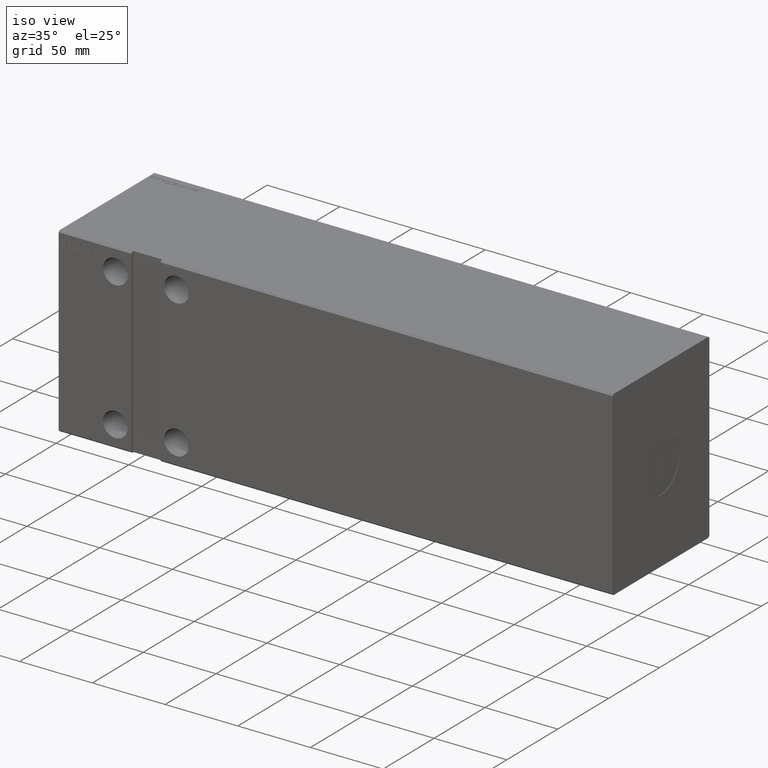
[diagram: clean part render]
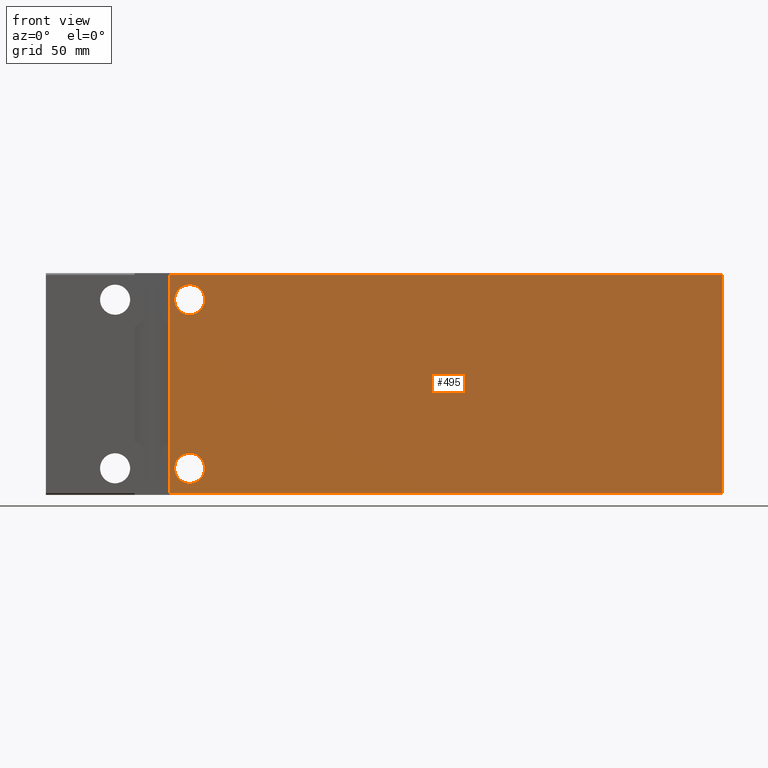
[diagram: tour spotlight — one face highlighted and labeled with its STEP entity id]
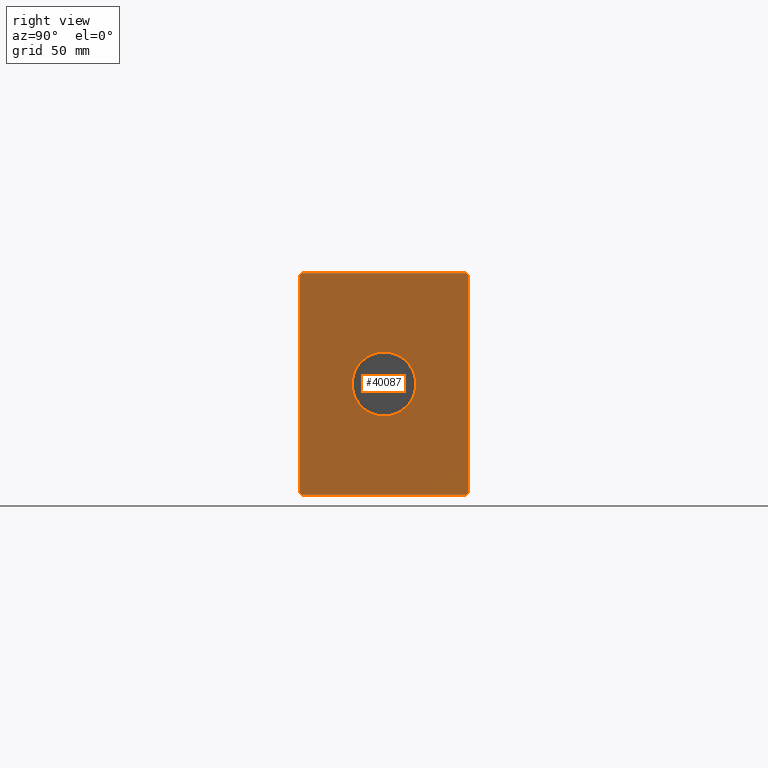
[diagram: tour spotlight — one face highlighted and labeled with its STEP entity id]
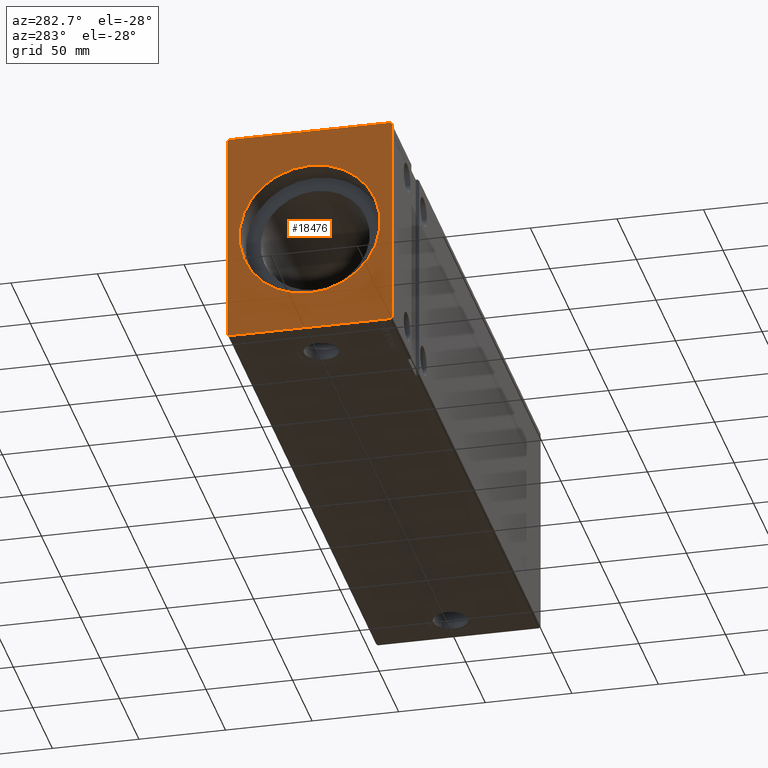
[diagram: tour spotlight — one face highlighted and labeled with its STEP entity id]
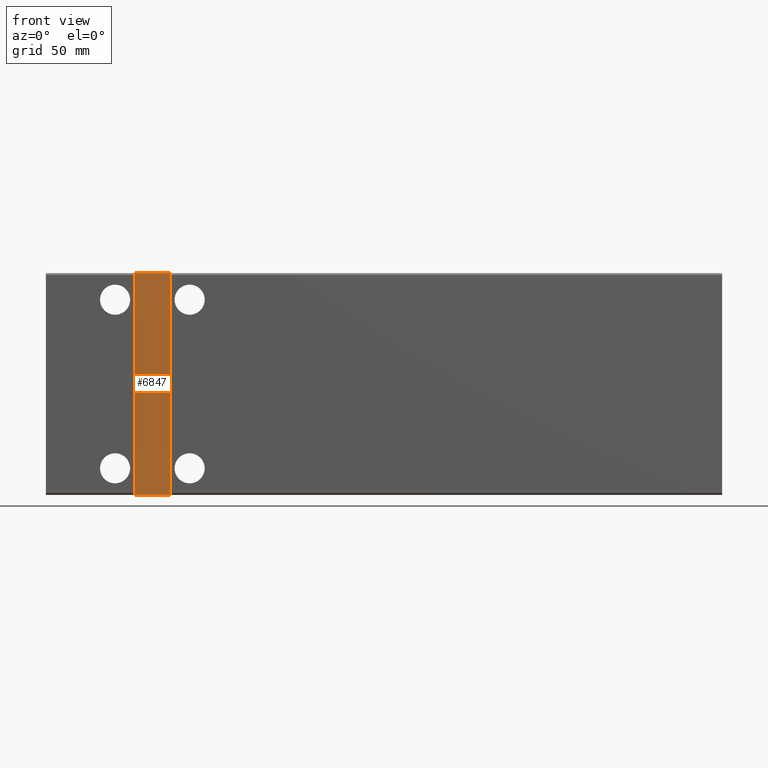
[diagram: tour spotlight — one face highlighted and labeled with its STEP entity id]
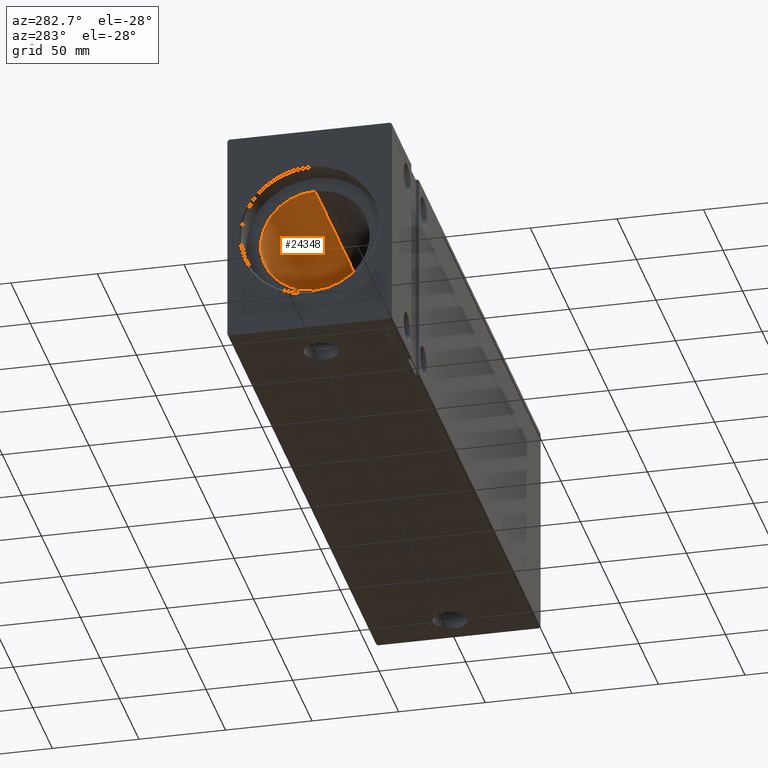
[diagram: tour spotlight — one face highlighted and labeled with its STEP entity id]
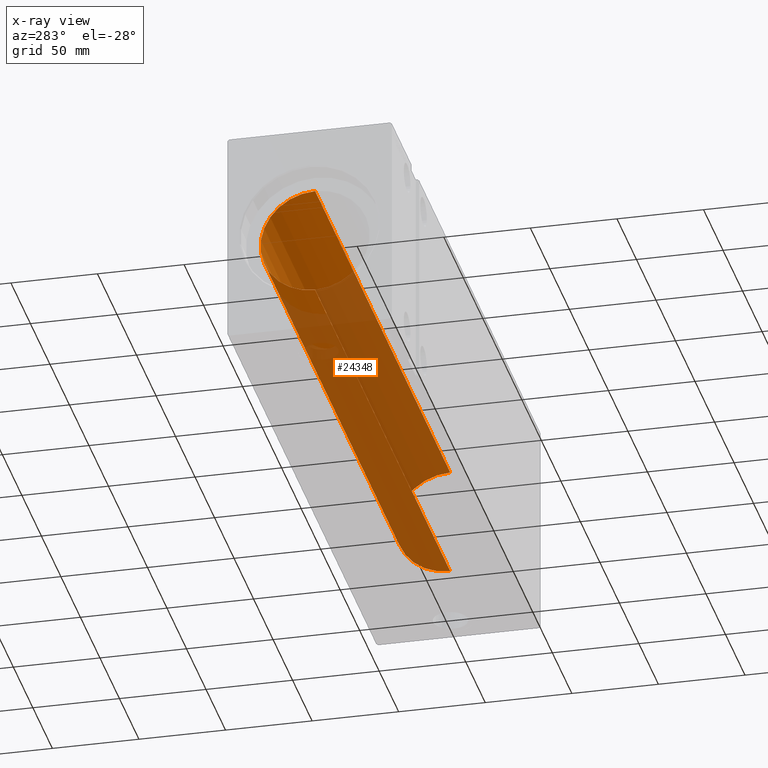
[diagram: x-ray of the same camera — body ghosted, this tour face saturated]
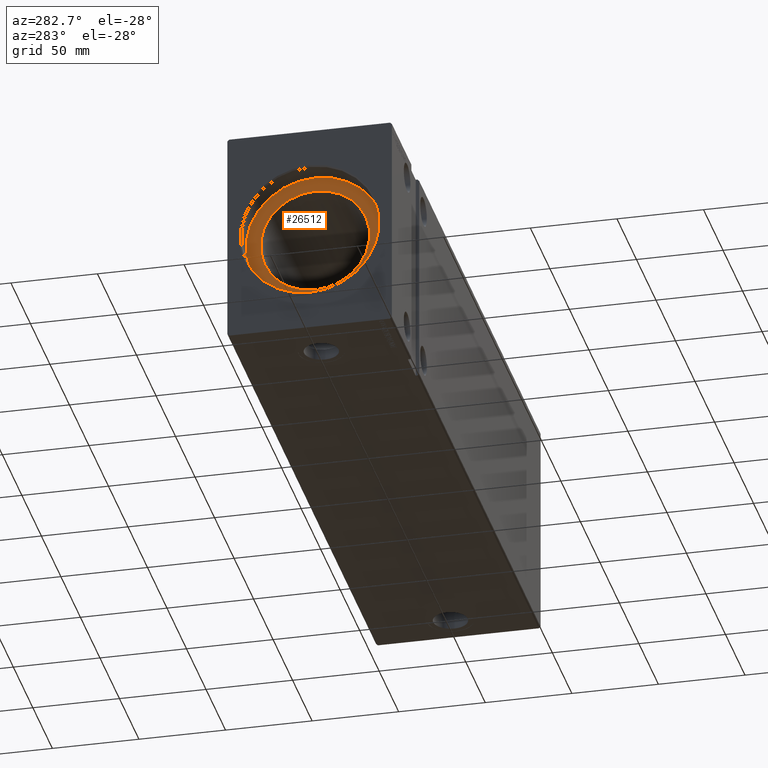
[diagram: tour spotlight — one face highlighted and labeled with its STEP entity id]
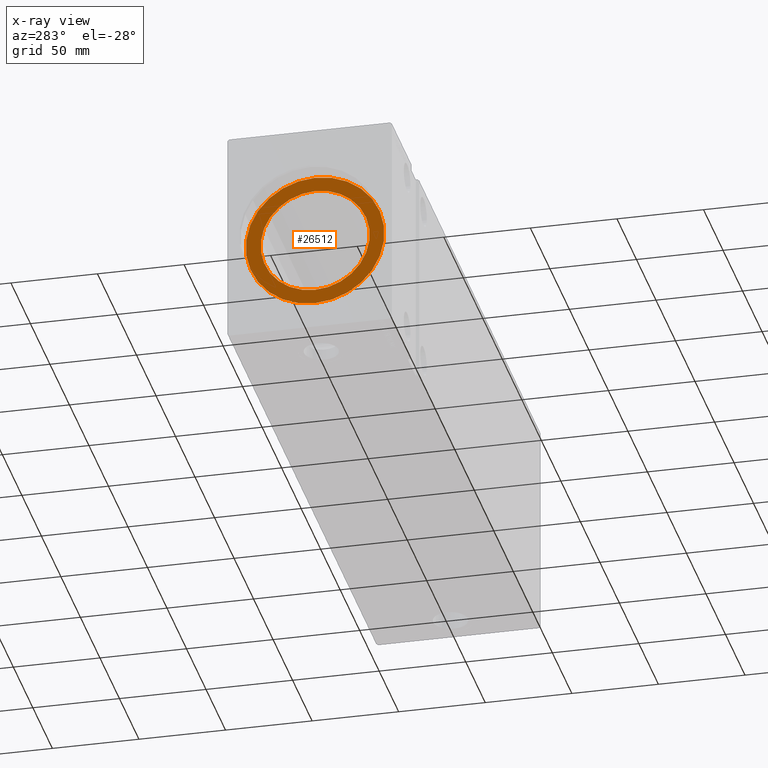
[diagram: x-ray of the same camera — body ghosted, this tour face saturated]
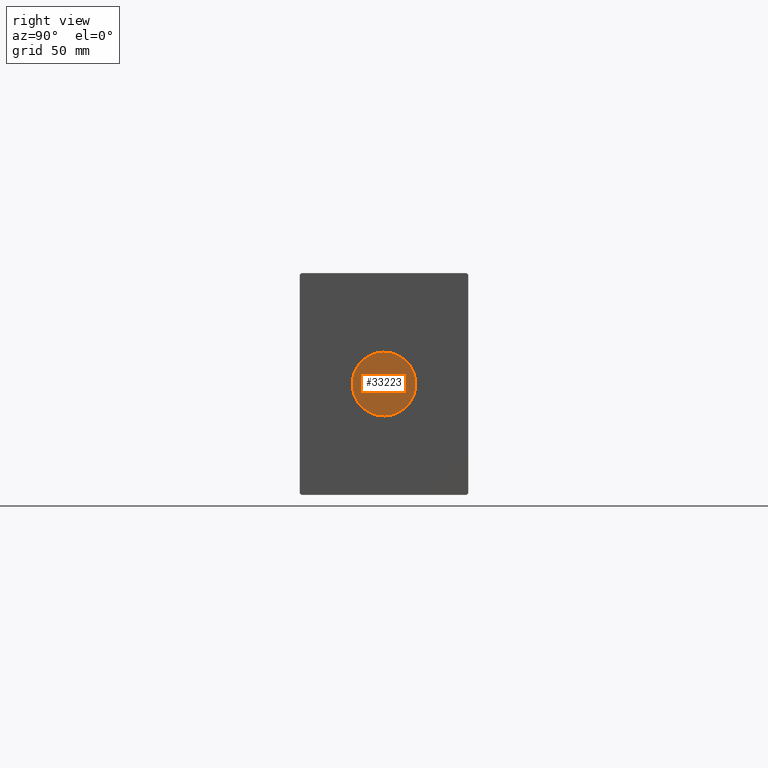
[diagram: tour spotlight — one face highlighted and labeled with its STEP entity id]
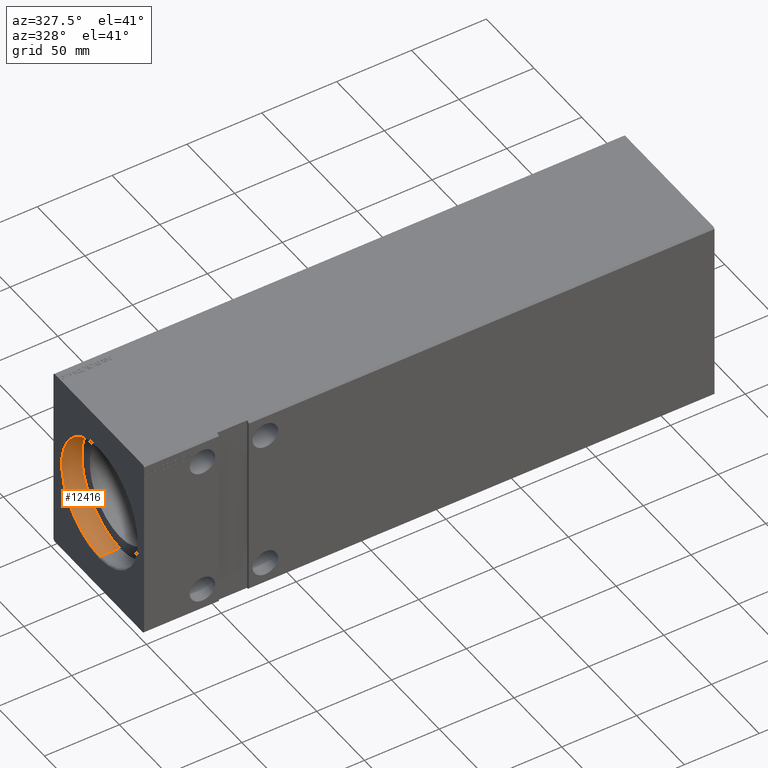
[diagram: tour spotlight — one face highlighted and labeled with its STEP entity id]
A machine part: a face-by-face anatomy tour. The part has 805 B-rep faces; the first image is the clean iso view, then the 8 largest visible faces are spotlighted one at a time (largest first), each with its STEP entity span.

Face 1 — front view, entity #495. In plain terms, the highlighted planar face has unit normal (-0, 1, 0).
Definition (entity closure, byte-faithful):
#404 = CARTESIAN_POINT ( 'NONE',  ( 381.0000000000000000, -47.50000000000001421, 61.49999999999997868 ) ) ;
#495 = ADVANCED_FACE ( 'NONE', ( #10434, #36680, #27073 ), #4462, .F. ) ;
#3072 = CARTESIAN_POINT ( 'NONE',  ( 381.0000000000000000, -47.49999999999999289, -61.50000000000001421 ) ) ;
#3134 = LINE ( 'NONE', #29373, #37512 ) ;
#3879 = CARTESIAN_POINT ( 'NONE',  ( 70.00000000000000000, -47.50000000000000711, 61.49999999999998579 ) ) ;
#4462 = PLANE ( 'NONE',  #24668 ) ;
#4849 = ORIENTED_EDGE ( 'NONE', *, *, #30646, .T. ) ;
#6388 = CARTESIAN_POINT ( 'NONE',  ( 81.00000000000000000, -47.50000000000000711, 55.99999999999999289 ) ) ;
#7873 = DIRECTION ( 'NONE',  ( -0.000000000000000000, 1.000000000000000000, 1.692413147294445970E-16 ) ) ;
#8151 = CARTESIAN_POINT ( 'NONE',  ( 81.00000000000001421, -47.49999999999999289, -56.00000000000001421 ) ) ;
#8710 = DIRECTION ( 'NONE',  ( -0.000000000000000000, 1.000000000000000000, 1.692413147294445970E-16 ) ) ;
#9524 = VECTOR ( 'NONE', #36567, 1000.000000000000000 ) ;
#10434 = FACE_BOUND ( 'NONE', #42038, .T. ) ;
#10473 = EDGE_LOOP ( 'NONE', ( #34260, #16860, #23644, #29429 ) ) ;
#11064 = DIRECTION ( 'NONE',  ( 0.000000000000000000, -1.692413147294445970E-16, 1.000000000000000000 ) ) ;
#11759 = CIRCLE ( 'NONE', #17923, 8.500000000000000000 ) ;
#12220 = VECTOR ( 'NONE', #13039, 1000.000000000000000 ) ;
#12515 = EDGE_LOOP ( 'NONE', ( #22028, #14663 ) ) ;
#13039 = DIRECTION ( 'NONE',  ( 0.000000000000000000, 1.692413147294445970E-16, -1.000000000000000000 ) ) ;
#13191 = ORIENTED_EDGE ( 'NONE', *, *, #28121, .T. ) ;
#13468 = LINE ( 'NONE', #39484, #12220 ) ;
#13518 = LINE ( 'NONE', #26527, #9524 ) ;
#14663 = ORIENTED_EDGE ( 'NONE', *, *, #34803, .F. ) ;
#15089 = VERTEX_POINT ( 'NONE', #3879 ) ;
#15092 = AXIS2_PLACEMENT_3D ( 'NONE', #22566, #8710, #15127 ) ;
#15127 = DIRECTION ( 'NONE',  ( 0.000000000000000000, 0.000000000000000000, 1.000000000000000000 ) ) ;
#16560 = DIRECTION ( 'NONE',  ( -1.110223024625156540E-16, -0.000000000000000000, 1.000000000000000000 ) ) ;
#16860 = ORIENTED_EDGE ( 'NONE', *, *, #22084, .F. ) ;
#17147 = CARTESIAN_POINT ( 'NONE',  ( 81.00000000000000000, -47.50000000000000711, 38.99999999999999289 ) ) ;
#17694 = CARTESIAN_POINT ( 'NONE',  ( 81.00000000000001421, -47.49999999999999289, -39.00000000000000000 ) ) ;
#17885 = VERTEX_POINT ( 'NONE', #17147 ) ;
#17923 = AXIS2_PLACEMENT_3D ( 'NONE', #35828, #26421, #19821 ) ;
#18189 = EDGE_CURVE ( 'NONE', #34721, #38424, #13468, .T. ) ;
#19104 = AXIS2_PLACEMENT_3D ( 'NONE', #40618, #37416, #33812 ) ;
#19821 = DIRECTION ( 'NONE',  ( 0.000000000000000000, 0.000000000000000000, 1.000000000000000000 ) ) ;
#19954 = VERTEX_POINT ( 'NONE', #25986 ) ;
#21642 = EDGE_CURVE ( 'NONE', #38424, #19954, #13518, .T. ) ;
#22028 = ORIENTED_EDGE ( 'NONE', *, *, #40724, .F. ) ;
#22084 = EDGE_CURVE ( 'NONE', #19954, #15089, #3134, .T. ) ;
#22369 = CARTESIAN_POINT ( 'NONE',  ( 381.0000000000000000, -47.50000000000001421, 61.49999999999997868 ) ) ;
#22566 = CARTESIAN_POINT ( 'NONE',  ( 81.00000000000001421, -47.49999999999999289, -47.50000000000000711 ) ) ;
#23644 = ORIENTED_EDGE ( 'NONE', *, *, #21642, .F. ) ;
#23897 = CIRCLE ( 'NONE', #19104, 8.500000000000007105 ) ;
#24240 = VERTEX_POINT ( 'NONE', #17694 ) ;
#24668 = AXIS2_PLACEMENT_3D ( 'NONE', #404, #7873, #11064 ) ;
#25986 = CARTESIAN_POINT ( 'NONE',  ( 70.00000000000001421, -47.50000000000000711, -61.50000000000002132 ) ) ;
#26421 = DIRECTION ( 'NONE',  ( 0.000000000000000000, -1.000000000000000000, -1.692413147294445970E-16 ) ) ;
#26527 = CARTESIAN_POINT ( 'NONE',  ( 381.0000000000000000, -47.49999999999999289, -61.50000000000001421 ) ) ;
#27073 = FACE_BOUND ( 'NONE', #12515, .T. ) ;
#27516 = VERTEX_POINT ( 'NONE', #6388 ) ;
#28121 = EDGE_CURVE ( 'NONE', #31984, #24240, #23897, .T. ) ;
#29373 = CARTESIAN_POINT ( 'NONE',  ( 70.00000000000000000, -47.50000000000000711, 62.49999999999997868 ) ) ;
#29429 = ORIENTED_EDGE ( 'NONE', *, *, #18189, .F. ) ;
#29708 = DIRECTION ( 'NONE',  ( 0.000000000000000000, 0.000000000000000000, 1.000000000000000000 ) ) ;
#29916 = CARTESIAN_POINT ( 'NONE',  ( 81.00000000000000000, -47.50000000000000711, 47.49999999999999289 ) ) ;
#30322 = CIRCLE ( 'NONE', #37105, 8.500000000000000000 ) ;
#30646 = EDGE_CURVE ( 'NONE', #24240, #31984, #33491, .T. ) ;
#31360 = DIRECTION ( 'NONE',  ( -1.000000000000000000, -0.000000000000000000, -0.000000000000000000 ) ) ;
#31984 = VERTEX_POINT ( 'NONE', #8151 ) ;
#33254 = CARTESIAN_POINT ( 'NONE',  ( 381.0000000000000000, -47.50000000000001421, 61.49999999999997868 ) ) ;
#33491 = CIRCLE ( 'NONE', #15092, 8.500000000000007105 ) ;
#33652 = EDGE_CURVE ( 'NONE', #34721, #15089, #38582, .T. ) ;
#33812 = DIRECTION ( 'NONE',  ( 0.000000000000000000, 0.000000000000000000, 1.000000000000000000 ) ) ;
#34260 = ORIENTED_EDGE ( 'NONE', *, *, #33652, .T. ) ;
#34721 = VERTEX_POINT ( 'NONE', #33254 ) ;
#34803 = EDGE_CURVE ( 'NONE', #27516, #17885, #11759, .T. ) ;
#35828 = CARTESIAN_POINT ( 'NONE',  ( 81.00000000000000000, -47.50000000000000711, 47.49999999999999289 ) ) ;
#36567 = DIRECTION ( 'NONE',  ( -1.000000000000000000, -0.000000000000000000, -0.000000000000000000 ) ) ;
#36680 = FACE_OUTER_BOUND ( 'NONE', #10473, .T. ) ;
#36743 = DIRECTION ( 'NONE',  ( 0.000000000000000000, -1.000000000000000000, -1.692413147294445970E-16 ) ) ;
#37105 = AXIS2_PLACEMENT_3D ( 'NONE', #29916, #36743, #29708 ) ;
#37416 = DIRECTION ( 'NONE',  ( -0.000000000000000000, 1.000000000000000000, 1.692413147294445970E-16 ) ) ;
#37512 = VECTOR ( 'NONE', #16560, 1000.000000000000000 ) ;
#37629 = VECTOR ( 'NONE', #31360, 1000.000000000000000 ) ;
#38424 = VERTEX_POINT ( 'NONE', #3072 ) ;
#38582 = LINE ( 'NONE', #22369, #37629 ) ;
#39484 = CARTESIAN_POINT ( 'NONE',  ( 381.0000000000000000, -47.50000000000001421, 61.49999999999997868 ) ) ;
#40618 = CARTESIAN_POINT ( 'NONE',  ( 81.00000000000001421, -47.49999999999999289, -47.50000000000000711 ) ) ;
#40724 = EDGE_CURVE ( 'NONE', #17885, #27516, #30322, .T. ) ;
#42038 = EDGE_LOOP ( 'NONE', ( #13191, #4849 ) ) ;

Face 2 — right view, entity #40087. In plain terms, the highlighted planar face has unit normal (1, 0, 0).
Definition (entity closure, byte-faithful):
#301 = DIRECTION ( 'NONE',  ( 1.000000000000000000, 0.000000000000000000, 0.000000000000000000 ) ) ;
#1329 = DIRECTION ( 'NONE',  ( 0.000000000000000000, -1.128275431529630729E-16, 1.000000000000000000 ) ) ;
#1611 = EDGE_CURVE ( 'NONE', #4263, #32450, #37185, .T. ) ;
#2789 = VERTEX_POINT ( 'NONE', #29898 ) ;
#3072 = CARTESIAN_POINT ( 'NONE',  ( 381.0000000000000000, -47.49999999999999289, -61.50000000000001421 ) ) ;
#3412 = FACE_BOUND ( 'NONE', #9410, .T. ) ;
#3756 = VECTOR ( 'NONE', #30555, 999.9999999999998863 ) ;
#4263 = VERTEX_POINT ( 'NONE', #26371 ) ;
#4635 = CARTESIAN_POINT ( 'NONE',  ( 381.0000000000000000, 46.50000000000000000, 62.49999999999998579 ) ) ;
#6471 = CARTESIAN_POINT ( 'NONE',  ( 381.0000000000000000, 46.50000000000000000, 62.49999999999998579 ) ) ;
#7181 = VERTEX_POINT ( 'NONE', #12640 ) ;
#7527 = CIRCLE ( 'NONE', #31392, 18.00000000000000000 ) ;
#7553 = DIRECTION ( 'NONE',  ( 0.000000000000000000, 0.000000000000000000, -1.000000000000000000 ) ) ;
#7765 = CARTESIAN_POINT ( 'NONE',  ( 381.0000000000000000, 0.000000000000000000, 0.000000000000000000 ) ) ;
#8198 = VECTOR ( 'NONE', #25537, 1000.000000000000114 ) ;
#8508 = ORIENTED_EDGE ( 'NONE', *, *, #25982, .T. ) ;
#9082 = VERTEX_POINT ( 'NONE', #17118 ) ;
#9410 = EDGE_LOOP ( 'NONE', ( #33318, #22929 ) ) ;
#9819 = ORIENTED_EDGE ( 'NONE', *, *, #10873, .T. ) ;
#10013 = DIRECTION ( 'NONE',  ( 1.000000000000000000, 0.000000000000000000, 0.000000000000000000 ) ) ;
#10873 = EDGE_CURVE ( 'NONE', #32450, #31829, #11140, .T. ) ;
#11140 = LINE ( 'NONE', #17344, #11930 ) ;
#11873 = CARTESIAN_POINT ( 'NONE',  ( 381.0000000000000000, 2.204364238465235428E-15, 18.00000000000000000 ) ) ;
#11930 = VECTOR ( 'NONE', #13935, 1000.000000000000114 ) ;
#12220 = VECTOR ( 'NONE', #13039, 1000.000000000000000 ) ;
#12473 = LINE ( 'NONE', #32312, #12940 ) ;
#12640 = CARTESIAN_POINT ( 'NONE',  ( 381.0000000000000000, 0.000000000000000000, -18.00000000000000000 ) ) ;
#12682 = EDGE_CURVE ( 'NONE', #31829, #35733, #20867, .T. ) ;
#12845 = ORIENTED_EDGE ( 'NONE', *, *, #41622, .T. ) ;
#12940 = VECTOR ( 'NONE', #32103, 1000.000000000000000 ) ;
#13039 = DIRECTION ( 'NONE',  ( 0.000000000000000000, 1.692413147294445970E-16, -1.000000000000000000 ) ) ;
#13468 = LINE ( 'NONE', #39484, #12220 ) ;
#13935 = DIRECTION ( 'NONE',  ( 0.000000000000000000, -0.7071067811865474617, 0.7071067811865474617 ) ) ;
#15477 = EDGE_CURVE ( 'NONE', #35557, #7181, #21772, .T. ) ;
#15959 = CARTESIAN_POINT ( 'NONE',  ( 381.0000000000000000, -46.50000000000001421, 62.49999999999997868 ) ) ;
#16422 = PLANE ( 'NONE',  #35065 ) ;
#17024 = AXIS2_PLACEMENT_3D ( 'NONE', #32531, #26338, #28702 ) ;
#17118 = CARTESIAN_POINT ( 'NONE',  ( 381.0000000000000000, 46.50000000000000000, -62.50000000000000000 ) ) ;
#17344 = CARTESIAN_POINT ( 'NONE',  ( 381.0000000000000000, 47.50000000000000000, 61.49999999999998579 ) ) ;
#17540 = LINE ( 'NONE', #29714, #3756 ) ;
#18189 = EDGE_CURVE ( 'NONE', #34721, #38424, #13468, .T. ) ;
#18954 = LINE ( 'NONE', #15959, #30997 ) ;
#19919 = VECTOR ( 'NONE', #1329, 1000.000000000000000 ) ;
#20494 = ORIENTED_EDGE ( 'NONE', *, *, #40341, .T. ) ;
#20867 = LINE ( 'NONE', #4635, #33813 ) ;
#21076 = EDGE_CURVE ( 'NONE', #38424, #2789, #21703, .T. ) ;
#21703 = LINE ( 'NONE', #31524, #8198 ) ;
#21772 = CIRCLE ( 'NONE', #17024, 18.00000000000000000 ) ;
#22929 = ORIENTED_EDGE ( 'NONE', *, *, #15477, .F. ) ;
#24701 = ORIENTED_EDGE ( 'NONE', *, *, #21076, .T. ) ;
#25537 = DIRECTION ( 'NONE',  ( 0.000000000000000000, 0.7071067811865451302, -0.7071067811865500152 ) ) ;
#25982 = EDGE_CURVE ( 'NONE', #2789, #9082, #12473, .T. ) ;
#26338 = DIRECTION ( 'NONE',  ( 1.000000000000000000, 0.000000000000000000, 0.000000000000000000 ) ) ;
#26371 = CARTESIAN_POINT ( 'NONE',  ( 381.0000000000000000, 47.50000000000001421, -61.50000000000001421 ) ) ;
#26935 = CARTESIAN_POINT ( 'NONE',  ( 381.0000000000000000, 47.50000000000000000, 61.49999999999998579 ) ) ;
#28074 = EDGE_CURVE ( 'NONE', #7181, #35557, #7527, .T. ) ;
#28599 = EDGE_LOOP ( 'NONE', ( #9819, #36410, #20494, #41409, #24701, #8508, #12845, #34407 ) ) ;
#28602 = FACE_OUTER_BOUND ( 'NONE', #28599, .T. ) ;
#28702 = DIRECTION ( 'NONE',  ( 0.000000000000000000, 0.000000000000000000, -1.000000000000000000 ) ) ;
#29446 = CARTESIAN_POINT ( 'NONE',  ( 381.0000000000000000, 0.000000000000000000, 0.000000000000000000 ) ) ;
#29714 = CARTESIAN_POINT ( 'NONE',  ( 381.0000000000000000, 46.50000000000000000, -62.50000000000000000 ) ) ;
#29898 = CARTESIAN_POINT ( 'NONE',  ( 381.0000000000000000, -46.50000000000000000, -62.50000000000001421 ) ) ;
#30555 = DIRECTION ( 'NONE',  ( 0.000000000000000000, 0.7071067811865574537, 0.7071067811865376918 ) ) ;
#30997 = VECTOR ( 'NONE', #41961, 1000.000000000000114 ) ;
#31392 = AXIS2_PLACEMENT_3D ( 'NONE', #7765, #301, #7553 ) ;
#31524 = CARTESIAN_POINT ( 'NONE',  ( 381.0000000000000000, -47.49999999999999289, -61.50000000000001421 ) ) ;
#31817 = DIRECTION ( 'NONE',  ( 0.000000000000000000, 0.000000000000000000, -1.000000000000000000 ) ) ;
#31829 = VERTEX_POINT ( 'NONE', #6471 ) ;
#32103 = DIRECTION ( 'NONE',  ( 0.000000000000000000, 1.000000000000000000, 1.492235248152092278E-16 ) ) ;
#32312 = CARTESIAN_POINT ( 'NONE',  ( 381.0000000000000000, -46.50000000000000000, -62.50000000000001421 ) ) ;
#32450 = VERTEX_POINT ( 'NONE', #26935 ) ;
#32531 = CARTESIAN_POINT ( 'NONE',  ( 381.0000000000000000, 0.000000000000000000, 0.000000000000000000 ) ) ;
#33254 = CARTESIAN_POINT ( 'NONE',  ( 381.0000000000000000, -47.50000000000001421, 61.49999999999997868 ) ) ;
#33318 = ORIENTED_EDGE ( 'NONE', *, *, #28074, .F. ) ;
#33813 = VECTOR ( 'NONE', #36452, 1000.000000000000000 ) ;
#34407 = ORIENTED_EDGE ( 'NONE', *, *, #1611, .T. ) ;
#34721 = VERTEX_POINT ( 'NONE', #33254 ) ;
#35065 = AXIS2_PLACEMENT_3D ( 'NONE', #29446, #10013, #31817 ) ;
#35557 = VERTEX_POINT ( 'NONE', #11873 ) ;
#35733 = VERTEX_POINT ( 'NONE', #39365 ) ;
#36410 = ORIENTED_EDGE ( 'NONE', *, *, #12682, .T. ) ;
#36452 = DIRECTION ( 'NONE',  ( 0.000000000000000000, -1.000000000000000000, -7.461176240760460157E-17 ) ) ;
#37185 = LINE ( 'NONE', #39965, #19919 ) ;
#38424 = VERTEX_POINT ( 'NONE', #3072 ) ;
#39365 = CARTESIAN_POINT ( 'NONE',  ( 381.0000000000000000, -46.50000000000001421, 62.49999999999997868 ) ) ;
#39484 = CARTESIAN_POINT ( 'NONE',  ( 381.0000000000000000, -47.50000000000001421, 61.49999999999997868 ) ) ;
#39965 = CARTESIAN_POINT ( 'NONE',  ( 381.0000000000000000, 47.50000000000001421, -61.50000000000001421 ) ) ;
#40087 = ADVANCED_FACE ( 'NONE', ( #3412, #28602 ), #16422, .T. ) ;
#40341 = EDGE_CURVE ( 'NONE', #35733, #34721, #18954, .T. ) ;
#41409 = ORIENTED_EDGE ( 'NONE', *, *, #18189, .T. ) ;
#41622 = EDGE_CURVE ( 'NONE', #9082, #4263, #17540, .T. ) ;
#41961 = DIRECTION ( 'NONE',  ( 0.000000000000000000, -0.7071067811865474617, -0.7071067811865474617 ) ) ;

Face 3 — auxiliary view, entity #18476. In plain terms, the highlighted planar face has unit normal (1, 0, 0).
Definition (entity closure, byte-faithful):
#339 = LINE ( 'NONE', #26377, #25888 ) ;
#1009 = VECTOR ( 'NONE', #27979, 1000.000000000000000 ) ;
#2553 = FACE_OUTER_BOUND ( 'NONE', #25810, .T. ) ;
#2905 = VERTEX_POINT ( 'NONE', #16403 ) ;
#3763 = ORIENTED_EDGE ( 'NONE', *, *, #17644, .F. ) ;
#3885 = EDGE_CURVE ( 'NONE', #15938, #11164, #24235, .T. ) ;
#4695 = DIRECTION ( 'NONE',  ( 1.000000000000000000, 0.000000000000000000, 0.000000000000000000 ) ) ;
#5729 = ORIENTED_EDGE ( 'NONE', *, *, #25611, .F. ) ;
#6349 = CARTESIAN_POINT ( 'NONE',  ( 0.000000000000000000, -46.50000000000000000, -62.50000000000001421 ) ) ;
#9157 = DIRECTION ( 'NONE',  ( 0.000000000000000000, 0.000000000000000000, -1.000000000000000000 ) ) ;
#10164 = CARTESIAN_POINT ( 'NONE',  ( 0.000000000000000000, 4.984312472529728892E-15, -40.70000000000001705 ) ) ;
#10448 = AXIS2_PLACEMENT_3D ( 'NONE', #33941, #4695, #15979 ) ;
#10463 = CARTESIAN_POINT ( 'NONE',  ( 0.000000000000000000, 46.50000000000000000, 62.49999999999998579 ) ) ;
#10578 = CARTESIAN_POINT ( 'NONE',  ( 0.000000000000000000, 47.50000000000000000, 61.49999999999998579 ) ) ;
#11164 = VERTEX_POINT ( 'NONE', #10463 ) ;
#11728 = DIRECTION ( 'NONE',  ( 0.000000000000000000, 1.000000000000000000, 1.492235248152092278E-16 ) ) ;
#11970 = LINE ( 'NONE', #24993, #15300 ) ;
#12362 = PLANE ( 'NONE',  #12887 ) ;
#12887 = AXIS2_PLACEMENT_3D ( 'NONE', #25378, #25167, #9157 ) ;
#15215 = CIRCLE ( 'NONE', #10448, 40.70000000000001705 ) ;
#15226 = VECTOR ( 'NONE', #20615, 1000.000000000000114 ) ;
#15300 = VECTOR ( 'NONE', #37997, 1000.000000000000114 ) ;
#15845 = AXIS2_PLACEMENT_3D ( 'NONE', #20960, #37173, #17972 ) ;
#15938 = VERTEX_POINT ( 'NONE', #38613 ) ;
#15979 = DIRECTION ( 'NONE',  ( 0.000000000000000000, 0.000000000000000000, -1.000000000000000000 ) ) ;
#16015 = CARTESIAN_POINT ( 'NONE',  ( 0.000000000000000000, 47.50000000000001421, -61.50000000000001421 ) ) ;
#16403 = CARTESIAN_POINT ( 'NONE',  ( 0.000000000000000000, -47.50000000000001421, 61.49999999999997868 ) ) ;
#16904 = LINE ( 'NONE', #29924, #21486 ) ;
#17644 = EDGE_CURVE ( 'NONE', #2905, #30331, #28166, .T. ) ;
#17972 = DIRECTION ( 'NONE',  ( 0.000000000000000000, 0.000000000000000000, -1.000000000000000000 ) ) ;
#18440 = VECTOR ( 'NONE', #30697, 1000.000000000000000 ) ;
#18476 = ADVANCED_FACE ( 'NONE', ( #41782, #2553 ), #12362, .F. ) ;
#18580 = LINE ( 'NONE', #21153, #1009 ) ;
#18589 = VECTOR ( 'NONE', #11728, 1000.000000000000000 ) ;
#19187 = CARTESIAN_POINT ( 'NONE',  ( 0.000000000000000000, -47.50000000000001421, 61.49999999999997868 ) ) ;
#19861 = ORIENTED_EDGE ( 'NONE', *, *, #3885, .F. ) ;
#19980 = ORIENTED_EDGE ( 'NONE', *, *, #40864, .F. ) ;
#20615 = DIRECTION ( 'NONE',  ( 0.000000000000000000, -0.7071067811865474617, 0.7071067811865474617 ) ) ;
#20960 = CARTESIAN_POINT ( 'NONE',  ( 0.000000000000000000, 0.000000000000000000, 0.000000000000000000 ) ) ;
#21153 = CARTESIAN_POINT ( 'NONE',  ( 0.000000000000000000, 46.50000000000000000, 62.49999999999998579 ) ) ;
#21200 = ORIENTED_EDGE ( 'NONE', *, *, #22506, .F. ) ;
#21486 = VECTOR ( 'NONE', #26503, 1000.000000000000114 ) ;
#22506 = EDGE_CURVE ( 'NONE', #29324, #15938, #27280, .T. ) ;
#24235 = LINE ( 'NONE', #10578, #15226 ) ;
#24706 = ORIENTED_EDGE ( 'NONE', *, *, #34588, .F. ) ;
#24854 = CARTESIAN_POINT ( 'NONE',  ( 0.000000000000000000, 46.50000000000000000, -62.50000000000000000 ) ) ;
#24993 = CARTESIAN_POINT ( 'NONE',  ( 0.000000000000000000, -46.50000000000001421, 62.49999999999997868 ) ) ;
#25167 = DIRECTION ( 'NONE',  ( 1.000000000000000000, 0.000000000000000000, 0.000000000000000000 ) ) ;
#25378 = CARTESIAN_POINT ( 'NONE',  ( 0.000000000000000000, 0.000000000000000000, 0.000000000000000000 ) ) ;
#25611 = EDGE_CURVE ( 'NONE', #35852, #29324, #339, .T. ) ;
#25800 = VECTOR ( 'NONE', #41166, 1000.000000000000000 ) ;
#25810 = EDGE_LOOP ( 'NONE', ( #19861, #21200, #5729, #24706, #39554, #3763, #19980, #30209 ) ) ;
#25888 = VECTOR ( 'NONE', #32361, 999.9999999999998863 ) ;
#25898 = VERTEX_POINT ( 'NONE', #35514 ) ;
#26377 = CARTESIAN_POINT ( 'NONE',  ( 0.000000000000000000, 46.50000000000000000, -62.50000000000000000 ) ) ;
#26503 = DIRECTION ( 'NONE',  ( 0.000000000000000000, 0.7071067811865451302, -0.7071067811865500152 ) ) ;
#27280 = LINE ( 'NONE', #37100, #18440 ) ;
#27979 = DIRECTION ( 'NONE',  ( 0.000000000000000000, -1.000000000000000000, -7.461176240760460157E-17 ) ) ;
#28166 = LINE ( 'NONE', #19187, #25800 ) ;
#29324 = VERTEX_POINT ( 'NONE', #16015 ) ;
#29924 = CARTESIAN_POINT ( 'NONE',  ( 0.000000000000000000, -47.49999999999999289, -61.50000000000001421 ) ) ;
#30000 = VERTEX_POINT ( 'NONE', #10164 ) ;
#30209 = ORIENTED_EDGE ( 'NONE', *, *, #40532, .F. ) ;
#30331 = VERTEX_POINT ( 'NONE', #34855 ) ;
#30644 = EDGE_LOOP ( 'NONE', ( #33262, #42024 ) ) ;
#30697 = DIRECTION ( 'NONE',  ( 0.000000000000000000, -1.128275431529630729E-16, 1.000000000000000000 ) ) ;
#31162 = LINE ( 'NONE', #40321, #18589 ) ;
#32078 = CARTESIAN_POINT ( 'NONE',  ( 0.000000000000000000, -46.50000000000001421, 62.49999999999997868 ) ) ;
#32361 = DIRECTION ( 'NONE',  ( 0.000000000000000000, 0.7071067811865574537, 0.7071067811865376918 ) ) ;
#33248 = VERTEX_POINT ( 'NONE', #32078 ) ;
#33262 = ORIENTED_EDGE ( 'NONE', *, *, #33374, .T. ) ;
#33374 = EDGE_CURVE ( 'NONE', #25898, #30000, #39688, .T. ) ;
#33941 = CARTESIAN_POINT ( 'NONE',  ( 0.000000000000000000, 0.000000000000000000, 0.000000000000000000 ) ) ;
#34588 = EDGE_CURVE ( 'NONE', #41316, #35852, #31162, .T. ) ;
#34855 = CARTESIAN_POINT ( 'NONE',  ( 0.000000000000000000, -47.49999999999999289, -61.50000000000001421 ) ) ;
#35514 = CARTESIAN_POINT ( 'NONE',  ( 0.000000000000000000, 0.000000000000000000, 40.70000000000001705 ) ) ;
#35852 = VERTEX_POINT ( 'NONE', #24854 ) ;
#36505 = EDGE_CURVE ( 'NONE', #30000, #25898, #15215, .T. ) ;
#37100 = CARTESIAN_POINT ( 'NONE',  ( 0.000000000000000000, 47.50000000000001421, -61.50000000000001421 ) ) ;
#37173 = DIRECTION ( 'NONE',  ( 1.000000000000000000, 0.000000000000000000, 0.000000000000000000 ) ) ;
#37997 = DIRECTION ( 'NONE',  ( 0.000000000000000000, -0.7071067811865474617, -0.7071067811865474617 ) ) ;
#38613 = CARTESIAN_POINT ( 'NONE',  ( 0.000000000000000000, 47.50000000000000000, 61.49999999999998579 ) ) ;
#39554 = ORIENTED_EDGE ( 'NONE', *, *, #41668, .F. ) ;
#39688 = CIRCLE ( 'NONE', #15845, 40.70000000000001705 ) ;
#40321 = CARTESIAN_POINT ( 'NONE',  ( 0.000000000000000000, -46.50000000000000000, -62.50000000000001421 ) ) ;
#40532 = EDGE_CURVE ( 'NONE', #11164, #33248, #18580, .T. ) ;
#40864 = EDGE_CURVE ( 'NONE', #33248, #2905, #11970, .T. ) ;
#41166 = DIRECTION ( 'NONE',  ( 0.000000000000000000, 1.692413147294445970E-16, -1.000000000000000000 ) ) ;
#41316 = VERTEX_POINT ( 'NONE', #6349 ) ;
#41668 = EDGE_CURVE ( 'NONE', #30331, #41316, #16904, .T. ) ;
#41782 = FACE_BOUND ( 'NONE', #30644, .T. ) ;
#42024 = ORIENTED_EDGE ( 'NONE', *, *, #36505, .T. ) ;

Face 4 — front view, entity #6847. In plain terms, the highlighted planar face has unit normal (0, -1, 0).
Definition (entity closure, byte-faithful):
#74 = EDGE_LOOP ( 'NONE', ( #28738, #40849, #27311, #22632 ) ) ;
#586 = VERTEX_POINT ( 'NONE', #12106 ) ;
#700 = CARTESIAN_POINT ( 'NONE',  ( 50.00000000000000000, -45.50000000000000711, -62.50000000000002842 ) ) ;
#1456 = EDGE_CURVE ( 'NONE', #586, #16304, #16086, .T. ) ;
#2545 = LINE ( 'NONE', #21961, #24718 ) ;
#3291 = DIRECTION ( 'NONE',  ( 1.110223024625156540E-16, 0.000000000000000000, -1.000000000000000000 ) ) ;
#6847 = ADVANCED_FACE ( 'NONE', ( #35161 ), #33177, .T. ) ;
#7634 = VECTOR ( 'NONE', #28684, 1000.000000000000000 ) ;
#9800 = VECTOR ( 'NONE', #20560, 1000.000000000000000 ) ;
#9902 = CARTESIAN_POINT ( 'NONE',  ( 49.99999999999998579, -45.50000000000000711, 62.49999999999997868 ) ) ;
#10544 = CARTESIAN_POINT ( 'NONE',  ( 0.000000000000000000, -45.50000000000000711, 1.101411730778925047E-16 ) ) ;
#12106 = CARTESIAN_POINT ( 'NONE',  ( 70.00000000000001421, -45.50000000000000711, -62.50000000000002842 ) ) ;
#12710 = CARTESIAN_POINT ( 'NONE',  ( 49.99999999999998579, -45.50000000000000711, 62.49999999999997868 ) ) ;
#15555 = DIRECTION ( 'NONE',  ( -1.000000000000000000, -0.000000000000000000, -0.000000000000000000 ) ) ;
#16086 = LINE ( 'NONE', #26105, #7634 ) ;
#16304 = VERTEX_POINT ( 'NONE', #34444 ) ;
#18938 = DIRECTION ( 'NONE',  ( 0.000000000000000000, -0.000000000000000000, -1.000000000000000000 ) ) ;
#19041 = EDGE_CURVE ( 'NONE', #31645, #35724, #22502, .T. ) ;
#20560 = DIRECTION ( 'NONE',  ( 1.000000000000000000, 0.000000000000000000, 0.000000000000000000 ) ) ;
#21961 = CARTESIAN_POINT ( 'NONE',  ( 49.99999999999998579, -45.50000000000000711, 62.49999999999997868 ) ) ;
#22502 = LINE ( 'NONE', #9902, #40817 ) ;
#22632 = ORIENTED_EDGE ( 'NONE', *, *, #38634, .T. ) ;
#24718 = VECTOR ( 'NONE', #15555, 1000.000000000000000 ) ;
#26105 = CARTESIAN_POINT ( 'NONE',  ( 70.00000000000000000, -45.50000000000000711, 62.49999999999997868 ) ) ;
#26181 = AXIS2_PLACEMENT_3D ( 'NONE', #10544, #38757, #18938 ) ;
#26737 = LINE ( 'NONE', #700, #9800 ) ;
#27311 = ORIENTED_EDGE ( 'NONE', *, *, #19041, .T. ) ;
#28684 = DIRECTION ( 'NONE',  ( -1.110223024625156540E-16, -0.000000000000000000, 1.000000000000000000 ) ) ;
#28738 = ORIENTED_EDGE ( 'NONE', *, *, #1456, .T. ) ;
#31645 = VERTEX_POINT ( 'NONE', #12710 ) ;
#33177 = PLANE ( 'NONE',  #26181 ) ;
#34444 = CARTESIAN_POINT ( 'NONE',  ( 70.00000000000000000, -45.50000000000000711, 62.49999999999997868 ) ) ;
#34694 = EDGE_CURVE ( 'NONE', #16304, #31645, #2545, .T. ) ;
#35161 = FACE_OUTER_BOUND ( 'NONE', #74, .T. ) ;
#35724 = VERTEX_POINT ( 'NONE', #39794 ) ;
#38634 = EDGE_CURVE ( 'NONE', #35724, #586, #26737, .T. ) ;
#38757 = DIRECTION ( 'NONE',  ( 0.000000000000000000, -1.000000000000000000, 0.000000000000000000 ) ) ;
#39794 = CARTESIAN_POINT ( 'NONE',  ( 50.00000000000000000, -45.50000000000000711, -62.50000000000002842 ) ) ;
#40817 = VECTOR ( 'NONE', #3291, 1000.000000000000000 ) ;
#40849 = ORIENTED_EDGE ( 'NONE', *, *, #34694, .T. ) ;

Face 5 — auxiliary view, entity #24348. An x-ray twin of the same camera follows (body ghosted, this face saturated) — the face is partly hidden behind the body. In plain terms, the highlighted cylindrical surface (partial cylindrical patch) has radius 31.5 mm, axis along (-1, -0, -0).
Definition (entity closure, byte-faithful):
#1224 = ORIENTED_EDGE ( 'NONE', *, *, #40189, .T. ) ;
#1280 = ORIENTED_EDGE ( 'NONE', *, *, #2428, .F. ) ;
#1697 = CYLINDRICAL_SURFACE ( 'NONE', #30752, 31.50000000000000000 ) ;
#2428 = EDGE_CURVE ( 'NONE', #36069, #8720, #28810, .T. ) ;
#2565 = DIRECTION ( 'NONE',  ( -1.000000000000000000, -0.000000000000000000, -0.000000000000000000 ) ) ;
#4718 = VECTOR ( 'NONE', #12422, 1000.000000000000000 ) ;
#5256 = CARTESIAN_POINT ( 'NONE',  ( 360.1999999999999886, 3.857637417314162689E-15, -31.50000000000000000 ) ) ;
#5972 = CARTESIAN_POINT ( 'NONE',  ( 360.1999999999999886, 3.857637417314162689E-15, -31.50000000000000000 ) ) ;
#7254 = CARTESIAN_POINT ( 'NONE',  ( 14.00000000000001243, 0.000000000000000000, 0.000000000000000000 ) ) ;
#7668 = DIRECTION ( 'NONE',  ( 0.000000000000000000, 0.000000000000000000, 1.000000000000000000 ) ) ;
#8720 = VERTEX_POINT ( 'NONE', #5256 ) ;
#9722 = EDGE_LOOP ( 'NONE', ( #15428, #1280, #13517, #1224 ) ) ;
#10660 = DIRECTION ( 'NONE',  ( -1.000000000000000000, 0.000000000000000000, 0.000000000000000000 ) ) ;
#10724 = CARTESIAN_POINT ( 'NONE',  ( 360.1999999999999886, 0.000000000000000000, 31.50000000000000000 ) ) ;
#11073 = VERTEX_POINT ( 'NONE', #23281 ) ;
#12422 = DIRECTION ( 'NONE',  ( -1.000000000000000000, -0.000000000000000000, -0.000000000000000000 ) ) ;
#13517 = ORIENTED_EDGE ( 'NONE', *, *, #15058, .T. ) ;
#14713 = DIRECTION ( 'NONE',  ( -1.000000000000000000, -0.000000000000000000, -0.000000000000000000 ) ) ;
#15058 = EDGE_CURVE ( 'NONE', #36069, #11073, #28646, .T. ) ;
#15197 = AXIS2_PLACEMENT_3D ( 'NONE', #35731, #19301, #16295 ) ;
#15428 = ORIENTED_EDGE ( 'NONE', *, *, #15903, .F. ) ;
#15903 = EDGE_CURVE ( 'NONE', #8720, #21194, #35631, .T. ) ;
#16295 = DIRECTION ( 'NONE',  ( 0.000000000000000000, 0.000000000000000000, 1.000000000000000000 ) ) ;
#19301 = DIRECTION ( 'NONE',  ( -1.000000000000000000, 0.000000000000000000, 0.000000000000000000 ) ) ;
#21194 = VERTEX_POINT ( 'NONE', #29788 ) ;
#21464 = AXIS2_PLACEMENT_3D ( 'NONE', #7254, #10660, #29867 ) ;
#23281 = CARTESIAN_POINT ( 'NONE',  ( 14.00000000000001243, 0.000000000000000000, 31.50000000000000000 ) ) ;
#24348 = ADVANCED_FACE ( 'NONE', ( #30934 ), #1697, .F. ) ;
#27088 = CARTESIAN_POINT ( 'NONE',  ( 360.1999999999999886, 0.000000000000000000, 0.000000000000000000 ) ) ;
#28646 = LINE ( 'NONE', #41640, #4718 ) ;
#28810 = CIRCLE ( 'NONE', #15197, 31.50000000000000000 ) ;
#28945 = CIRCLE ( 'NONE', #21464, 31.50000000000000000 ) ;
#29788 = CARTESIAN_POINT ( 'NONE',  ( 14.00000000000001243, 3.857637417314162689E-15, -31.50000000000000000 ) ) ;
#29867 = DIRECTION ( 'NONE',  ( 0.000000000000000000, 0.000000000000000000, 1.000000000000000000 ) ) ;
#30752 = AXIS2_PLACEMENT_3D ( 'NONE', #27088, #14713, #7668 ) ;
#30934 = FACE_OUTER_BOUND ( 'NONE', #9722, .T. ) ;
#35453 = VECTOR ( 'NONE', #2565, 1000.000000000000000 ) ;
#35631 = LINE ( 'NONE', #5972, #35453 ) ;
#35731 = CARTESIAN_POINT ( 'NONE',  ( 360.1999999999999886, 0.000000000000000000, 0.000000000000000000 ) ) ;
#36069 = VERTEX_POINT ( 'NONE', #10724 ) ;
#40189 = EDGE_CURVE ( 'NONE', #11073, #21194, #28945, .T. ) ;
#41640 = CARTESIAN_POINT ( 'NONE',  ( 360.1999999999999886, 0.000000000000000000, 31.50000000000000000 ) ) ;

Face 6 — auxiliary view, entity #26512. An x-ray twin of the same camera follows (body ghosted, this face saturated) — the face is partly hidden behind the body. In plain terms, the highlighted planar face has unit normal (-1, 0, 0).
Definition (entity closure, byte-faithful):
#1836 = PLANE ( 'NONE',  #6119 ) ;
#5004 = AXIS2_PLACEMENT_3D ( 'NONE', #39696, #6628, #23063 ) ;
#5245 = DIRECTION ( 'NONE',  ( -1.000000000000000000, 0.000000000000000000, 0.000000000000000000 ) ) ;
#5271 = DIRECTION ( 'NONE',  ( 0.000000000000000000, 0.000000000000000000, 1.000000000000000000 ) ) ;
#5409 = CARTESIAN_POINT ( 'NONE',  ( 14.00000000000000000, 4.898587196589413026E-15, -40.00000000000000000 ) ) ;
#6119 = AXIS2_PLACEMENT_3D ( 'NONE', #40861, #5245, #18261 ) ;
#6628 = DIRECTION ( 'NONE',  ( -1.000000000000000000, 0.000000000000000000, 0.000000000000000000 ) ) ;
#7254 = CARTESIAN_POINT ( 'NONE',  ( 14.00000000000001243, 0.000000000000000000, 0.000000000000000000 ) ) ;
#9683 = CIRCLE ( 'NONE', #15151, 31.50000000000000000 ) ;
#9828 = AXIS2_PLACEMENT_3D ( 'NONE', #40981, #11757, #37793 ) ;
#10660 = DIRECTION ( 'NONE',  ( -1.000000000000000000, 0.000000000000000000, 0.000000000000000000 ) ) ;
#11073 = VERTEX_POINT ( 'NONE', #23281 ) ;
#11757 = DIRECTION ( 'NONE',  ( -1.000000000000000000, 0.000000000000000000, 0.000000000000000000 ) ) ;
#12083 = DIRECTION ( 'NONE',  ( -1.000000000000000000, 0.000000000000000000, 0.000000000000000000 ) ) ;
#12859 = EDGE_LOOP ( 'NONE', ( #40114, #35547 ) ) ;
#15151 = AXIS2_PLACEMENT_3D ( 'NONE', #17650, #12083, #5271 ) ;
#15268 = FACE_OUTER_BOUND ( 'NONE', #12859, .T. ) ;
#16045 = EDGE_LOOP ( 'NONE', ( #25542, #32568 ) ) ;
#16849 = CARTESIAN_POINT ( 'NONE',  ( 14.00000000000000000, 0.000000000000000000, 40.00000000000000000 ) ) ;
#17250 = CIRCLE ( 'NONE', #5004, 40.00000000000000000 ) ;
#17650 = CARTESIAN_POINT ( 'NONE',  ( 14.00000000000001243, 0.000000000000000000, 0.000000000000000000 ) ) ;
#18261 = DIRECTION ( 'NONE',  ( 0.000000000000000000, 0.000000000000000000, 1.000000000000000000 ) ) ;
#21194 = VERTEX_POINT ( 'NONE', #29788 ) ;
#21464 = AXIS2_PLACEMENT_3D ( 'NONE', #7254, #10660, #29867 ) ;
#23063 = DIRECTION ( 'NONE',  ( 0.000000000000000000, 0.000000000000000000, 1.000000000000000000 ) ) ;
#23281 = CARTESIAN_POINT ( 'NONE',  ( 14.00000000000001243, 0.000000000000000000, 31.50000000000000000 ) ) ;
#25542 = ORIENTED_EDGE ( 'NONE', *, *, #40189, .F. ) ;
#26512 = ADVANCED_FACE ( 'NONE', ( #31699, #15268 ), #1836, .T. ) ;
#28243 = CIRCLE ( 'NONE', #9828, 40.00000000000000000 ) ;
#28945 = CIRCLE ( 'NONE', #21464, 31.50000000000000000 ) ;
#28951 = VERTEX_POINT ( 'NONE', #5409 ) ;
#29788 = CARTESIAN_POINT ( 'NONE',  ( 14.00000000000001243, 3.857637417314162689E-15, -31.50000000000000000 ) ) ;
#29867 = DIRECTION ( 'NONE',  ( 0.000000000000000000, 0.000000000000000000, 1.000000000000000000 ) ) ;
#31699 = FACE_BOUND ( 'NONE', #16045, .T. ) ;
#32568 = ORIENTED_EDGE ( 'NONE', *, *, #33932, .F. ) ;
#33932 = EDGE_CURVE ( 'NONE', #21194, #11073, #9683, .T. ) ;
#35547 = ORIENTED_EDGE ( 'NONE', *, *, #40863, .T. ) ;
#36213 = EDGE_CURVE ( 'NONE', #40184, #28951, #17250, .T. ) ;
#37793 = DIRECTION ( 'NONE',  ( 0.000000000000000000, 0.000000000000000000, 1.000000000000000000 ) ) ;
#39696 = CARTESIAN_POINT ( 'NONE',  ( 14.00000000000000000, 0.000000000000000000, 0.000000000000000000 ) ) ;
#40114 = ORIENTED_EDGE ( 'NONE', *, *, #36213, .T. ) ;
#40184 = VERTEX_POINT ( 'NONE', #16849 ) ;
#40189 = EDGE_CURVE ( 'NONE', #11073, #21194, #28945, .T. ) ;
#40861 = CARTESIAN_POINT ( 'NONE',  ( 14.00000000000000000, 0.000000000000000000, 0.000000000000000000 ) ) ;
#40863 = EDGE_CURVE ( 'NONE', #28951, #40184, #28243, .T. ) ;
#40981 = CARTESIAN_POINT ( 'NONE',  ( 14.00000000000000000, 0.000000000000000000, 0.000000000000000000 ) ) ;

Face 7 — right view, entity #33223. In plain terms, the highlighted planar face has unit normal (1, 0, 0).
Definition (entity closure, byte-faithful):
#218 = CARTESIAN_POINT ( 'NONE',  ( 380.8000000000000114, 0.000000000000000000, 0.000000000000000000 ) ) ;
#4627 = CARTESIAN_POINT ( 'NONE',  ( 380.8000000000000114, 0.000000000000000000, -18.00000000000000000 ) ) ;
#4977 = AXIS2_PLACEMENT_3D ( 'NONE', #218, #13673, #16657 ) ;
#6249 = FACE_OUTER_BOUND ( 'NONE', #15623, .T. ) ;
#6443 = AXIS2_PLACEMENT_3D ( 'NONE', #40302, #11075, #30501 ) ;
#8531 = VERTEX_POINT ( 'NONE', #32591 ) ;
#9403 = EDGE_CURVE ( 'NONE', #37516, #8531, #19397, .T. ) ;
#9654 = PLANE ( 'NONE',  #34255 ) ;
#11075 = DIRECTION ( 'NONE',  ( 1.000000000000000000, 0.000000000000000000, 0.000000000000000000 ) ) ;
#11125 = ORIENTED_EDGE ( 'NONE', *, *, #9403, .T. ) ;
#12446 = DIRECTION ( 'NONE',  ( 1.000000000000000000, 0.000000000000000000, 0.000000000000000000 ) ) ;
#13124 = CIRCLE ( 'NONE', #4977, 18.00000000000000000 ) ;
#13673 = DIRECTION ( 'NONE',  ( 1.000000000000000000, 0.000000000000000000, 0.000000000000000000 ) ) ;
#15623 = EDGE_LOOP ( 'NONE', ( #11125, #32332 ) ) ;
#16657 = DIRECTION ( 'NONE',  ( 0.000000000000000000, 0.000000000000000000, -1.000000000000000000 ) ) ;
#19397 = CIRCLE ( 'NONE', #6443, 18.00000000000000000 ) ;
#30501 = DIRECTION ( 'NONE',  ( 0.000000000000000000, 0.000000000000000000, -1.000000000000000000 ) ) ;
#32332 = ORIENTED_EDGE ( 'NONE', *, *, #34392, .T. ) ;
#32591 = CARTESIAN_POINT ( 'NONE',  ( 380.8000000000000114, 2.204364238465235428E-15, 18.00000000000000000 ) ) ;
#33223 = ADVANCED_FACE ( 'NONE', ( #6249 ), #9654, .T. ) ;
#34255 = AXIS2_PLACEMENT_3D ( 'NONE', #38471, #12446, #41254 ) ;
#34392 = EDGE_CURVE ( 'NONE', #8531, #37516, #13124, .T. ) ;
#37516 = VERTEX_POINT ( 'NONE', #4627 ) ;
#38471 = CARTESIAN_POINT ( 'NONE',  ( 380.8000000000000114, 0.000000000000000000, 0.000000000000000000 ) ) ;
#40302 = CARTESIAN_POINT ( 'NONE',  ( 380.8000000000000114, 0.000000000000000000, 0.000000000000000000 ) ) ;
#41254 = DIRECTION ( 'NONE',  ( 0.000000000000000000, 0.000000000000000000, -1.000000000000000000 ) ) ;

Face 8 — auxiliary view, entity #12416. In plain terms, the highlighted cylindrical surface (partial cylindrical patch) has radius 40 mm, axis along (-1, -0, -0).
Definition (entity closure, byte-faithful):
#2536 = DIRECTION ( 'NONE',  ( 0.000000000000000000, 0.000000000000000000, 1.000000000000000000 ) ) ;
#3755 = CARTESIAN_POINT ( 'NONE',  ( 0.6999999999999853006, 0.000000000000000000, 40.00000000000000000 ) ) ;
#3819 = EDGE_LOOP ( 'NONE', ( #28079, #20780, #33689, #24524 ) ) ;
#4012 = CARTESIAN_POINT ( 'NONE',  ( 14.00000000000000000, 0.000000000000000000, 40.00000000000000000 ) ) ;
#4062 = EDGE_CURVE ( 'NONE', #40184, #16898, #36023, .T. ) ;
#5004 = AXIS2_PLACEMENT_3D ( 'NONE', #39696, #6628, #23063 ) ;
#5316 = FACE_OUTER_BOUND ( 'NONE', #3819, .T. ) ;
#5409 = CARTESIAN_POINT ( 'NONE',  ( 14.00000000000000000, 4.898587196589413026E-15, -40.00000000000000000 ) ) ;
#5520 = LINE ( 'NONE', #28351, #41857 ) ;
#6628 = DIRECTION ( 'NONE',  ( -1.000000000000000000, 0.000000000000000000, 0.000000000000000000 ) ) ;
#11060 = CIRCLE ( 'NONE', #41709, 40.00000000000000000 ) ;
#12416 = ADVANCED_FACE ( 'NONE', ( #5316 ), #28558, .F. ) ;
#12970 = CARTESIAN_POINT ( 'NONE',  ( 0.6999999999999853006, 0.000000000000000000, 0.000000000000000000 ) ) ;
#14722 = DIRECTION ( 'NONE',  ( -1.000000000000000000, -0.000000000000000000, -0.000000000000000000 ) ) ;
#16849 = CARTESIAN_POINT ( 'NONE',  ( 14.00000000000000000, 0.000000000000000000, 40.00000000000000000 ) ) ;
#16898 = VERTEX_POINT ( 'NONE', #3755 ) ;
#17250 = CIRCLE ( 'NONE', #5004, 40.00000000000000000 ) ;
#19304 = VERTEX_POINT ( 'NONE', #26861 ) ;
#20025 = DIRECTION ( 'NONE',  ( -1.000000000000000000, 0.000000000000000000, 0.000000000000000000 ) ) ;
#20780 = ORIENTED_EDGE ( 'NONE', *, *, #36213, .F. ) ;
#21952 = CARTESIAN_POINT ( 'NONE',  ( 14.00000000000000000, 0.000000000000000000, 0.000000000000000000 ) ) ;
#23063 = DIRECTION ( 'NONE',  ( 0.000000000000000000, 0.000000000000000000, 1.000000000000000000 ) ) ;
#24524 = ORIENTED_EDGE ( 'NONE', *, *, #33782, .T. ) ;
#25988 = DIRECTION ( 'NONE',  ( 0.000000000000000000, 0.000000000000000000, -1.000000000000000000 ) ) ;
#26861 = CARTESIAN_POINT ( 'NONE',  ( 0.6999999999999853006, 4.898587196589413026E-15, -40.00000000000000000 ) ) ;
#28079 = ORIENTED_EDGE ( 'NONE', *, *, #40330, .F. ) ;
#28351 = CARTESIAN_POINT ( 'NONE',  ( 14.00000000000000000, 4.898587196589413026E-15, -40.00000000000000000 ) ) ;
#28558 = CYLINDRICAL_SURFACE ( 'NONE', #34452, 40.00000000000000000 ) ;
#28951 = VERTEX_POINT ( 'NONE', #5409 ) ;
#33689 = ORIENTED_EDGE ( 'NONE', *, *, #4062, .T. ) ;
#33782 = EDGE_CURVE ( 'NONE', #16898, #19304, #11060, .T. ) ;
#34452 = AXIS2_PLACEMENT_3D ( 'NONE', #21952, #14722, #2536 ) ;
#36023 = LINE ( 'NONE', #4012, #37001 ) ;
#36213 = EDGE_CURVE ( 'NONE', #40184, #28951, #17250, .T. ) ;
#36241 = DIRECTION ( 'NONE',  ( -1.000000000000000000, -0.000000000000000000, -0.000000000000000000 ) ) ;
#37001 = VECTOR ( 'NONE', #36241, 1000.000000000000000 ) ;
#39696 = CARTESIAN_POINT ( 'NONE',  ( 14.00000000000000000, 0.000000000000000000, 0.000000000000000000 ) ) ;
#40184 = VERTEX_POINT ( 'NONE', #16849 ) ;
#40330 = EDGE_CURVE ( 'NONE', #28951, #19304, #5520, .T. ) ;
#41344 = DIRECTION ( 'NONE',  ( -1.000000000000000000, -0.000000000000000000, -0.000000000000000000 ) ) ;
#41709 = AXIS2_PLACEMENT_3D ( 'NONE', #12970, #20025, #25988 ) ;
#41857 = VECTOR ( 'NONE', #41344, 1000.000000000000000 ) ;